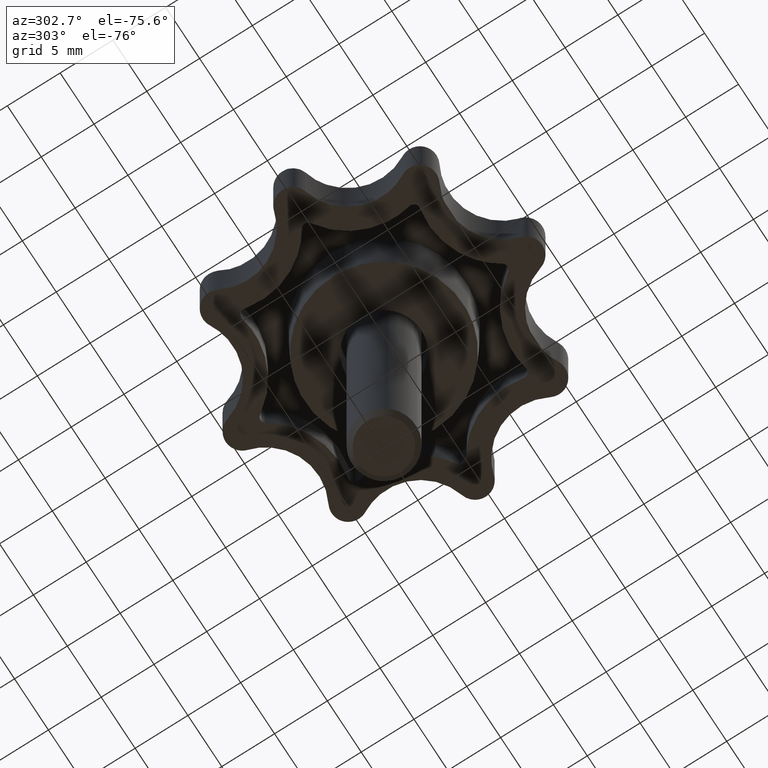
[diagram: clean part render]
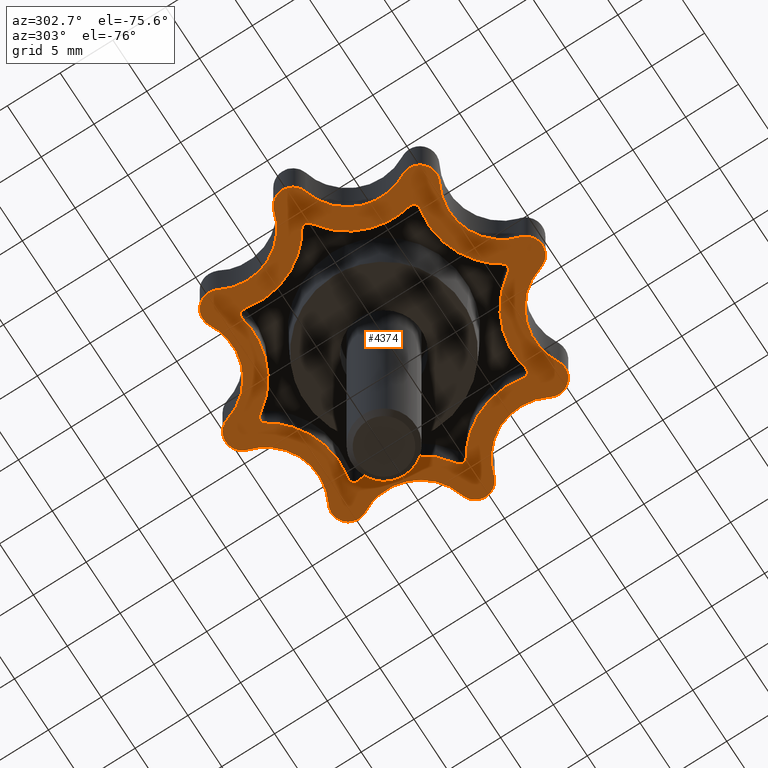
[diagram: same view with one face highlighted and labeled with its STEP entity id]
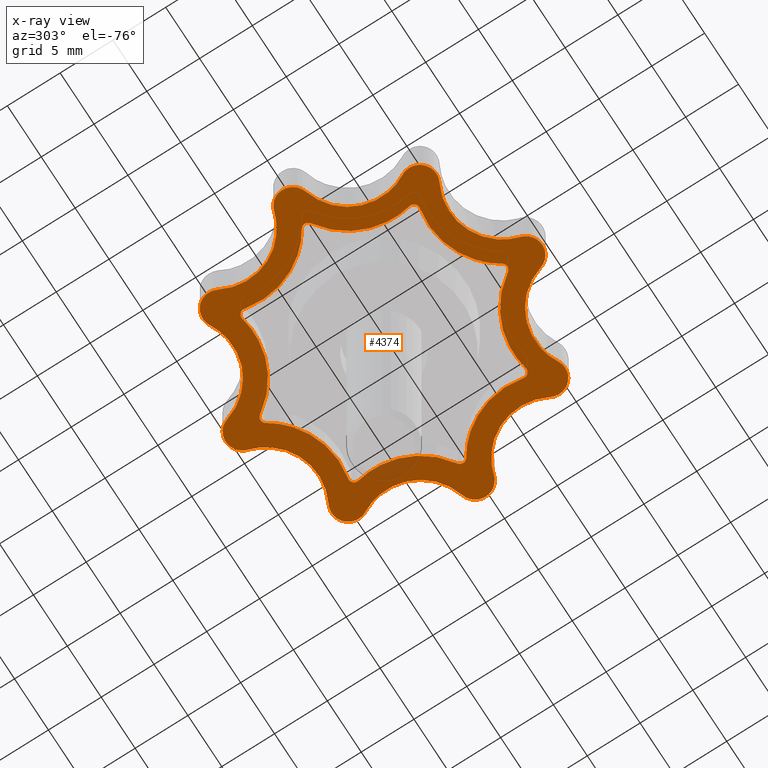
[diagram: x-ray of the same camera — body ghosted, the highlighted face saturated]
A machine part, auxiliary view. The second image highlights one B-rep face of the part: STEP entity #4374.
The next image is the same camera in x-ray: the body ghosted, the highlighted face saturated — about 3% of this face is hidden behind the body in this view.
In plain terms, the highlighted face is a freeform B-spline surface patch.
Its self-contained STEP definition (entity closure, byte-faithful):
#1840=CARTESIAN_POINT('',(-11.466616060353440,-0.420951746445585,3.0));
#1841=VERTEX_POINT('',#1840);
#1842=CARTESIAN_POINT('',(-11.466616669341400,0.420953220121765,3.0));
#1843=VERTEX_POINT('',#1842);
#1844=CARTESIAN_POINT('',(-11.466616060353440,-0.420951746445585,3.0));
#1845=CARTESIAN_POINT('',(-11.696802225653112,-0.273411032230165,3.0));
#1846=CARTESIAN_POINT('',(-11.696802423424270,0.000000801871896,3.0));
#1847=CARTESIAN_POINT('',(-11.696802621195422,0.273412635973957,3.0));
#1848=CARTESIAN_POINT('',(-11.466616669341400,0.420953220121765,3.0));
#1856=(BOUNDED_CURVE()B_SPLINE_CURVE(2,(#1844,#1845,#1846,#1847,#1848),.UNSPECIFIED.,.F.,.U.)B_SPLINE_CURVE_WITH_KNOTS((3,2,3),(0.0,0.500000000000000,1.0),.UNSPECIFIED.)CURVE()GEOMETRIC_REPRESENTATION_ITEM()RATIONAL_B_SPLINE_CURVE((1.0,0.877390415620743,1.0,0.877390415620743,1.0))REPRESENTATION_ITEM(''));
#1857=EDGE_CURVE('',#1841,#1843,#1856,.T.);
#1905=CARTESIAN_POINT('',(-8.405779169412218,7.810465440546620,3.0));
#1906=VERTEX_POINT('',#1905);
#1907=CARTESIAN_POINT('',(-8.405779169412218,7.810465440546620,3.0));
#1908=CARTESIAN_POINT('',(-7.364287795839590,3.050389231653052,3.000000000000000));
#1909=CARTESIAN_POINT('',(-11.466616669341400,0.420953220121765,3.0));
#1917=(BOUNDED_CURVE()B_SPLINE_CURVE(2,(#1907,#1908,#1909),.UNSPECIFIED.,.F.,.U.)CURVE()GEOMETRIC_REPRESENTATION_ITEM()QUASI_UNIFORM_CURVE()RATIONAL_B_SPLINE_CURVE((1.0,0.820733852812958,1.0))REPRESENTATION_ITEM(''));
#1918=EDGE_CURVE('',#1906,#1843,#1917,.T.);
#1958=CARTESIAN_POINT('',(-7.810465116249390,8.405778471548711,3.0));
#1959=VERTEX_POINT('',#1958);
#1960=CARTESIAN_POINT('',(-8.405779169412218,7.810465440546620,3.0));
#1961=CARTESIAN_POINT('',(-8.464218458870660,8.077557511948944,3.0));
#1962=CARTESIAN_POINT('',(-8.270888085413219,8.270887553456022,3.0));
#1963=CARTESIAN_POINT('',(-8.077557711955777,8.464217594963097,3.0));
#1964=CARTESIAN_POINT('',(-7.810465116249390,8.405778471548711,3.0));
#1972=(BOUNDED_CURVE()B_SPLINE_CURVE(2,(#1960,#1961,#1962,#1963,#1964),.UNSPECIFIED.,.F.,.U.)B_SPLINE_CURVE_WITH_KNOTS((3,2,3),(0.0,0.500000000000000,1.0),.UNSPECIFIED.)CURVE()GEOMETRIC_REPRESENTATION_ITEM()RATIONAL_B_SPLINE_CURVE((1.0,0.877390700077393,1.0,0.877390700077393,1.0))REPRESENTATION_ITEM(''));
#1973=EDGE_CURVE('',#1906,#1959,#1972,.T.);
#2015=CARTESIAN_POINT('',(-0.420951817082727,11.466617950148519,3.0));
#2016=VERTEX_POINT('',#2015);
#2017=CARTESIAN_POINT('',(-0.420951817082727,11.466617950148519,3.0));
#2018=CARTESIAN_POINT('',(-3.050386521005773,7.364285916724610,3.000000000000000));
#2019=CARTESIAN_POINT('',(-7.810465116249391,8.405778471548709,3.0));
#2027=(BOUNDED_CURVE()B_SPLINE_CURVE(2,(#2017,#2018,#2019),.UNSPECIFIED.,.F.,.U.)CURVE()GEOMETRIC_REPRESENTATION_ITEM()QUASI_UNIFORM_CURVE()RATIONAL_B_SPLINE_CURVE((1.0,0.820733710770404,1.0))REPRESENTATION_ITEM(''));
#2028=EDGE_CURVE('',#2016,#1959,#2027,.T.);
#2068=CARTESIAN_POINT('',(0.420952560841821,11.466615697920640,3.0));
#2069=VERTEX_POINT('',#2068);
#2070=CARTESIAN_POINT('',(-0.420951817082728,11.466617950148519,3.0));
#2071=CARTESIAN_POINT('',(-0.273410995669542,11.696804628167095,3.0));
#2072=CARTESIAN_POINT('',(0.000001148757352,11.696803999998680,3.0));
#2073=CARTESIAN_POINT('',(0.273413293184246,11.696803371830264,3.0));
#2074=CARTESIAN_POINT('',(0.420952560841821,11.466615697920640,3.0));
#2082=(BOUNDED_CURVE()B_SPLINE_CURVE(2,(#2070,#2071,#2072,#2073,#2074),.UNSPECIFIED.,.F.,.U.)B_SPLINE_CURVE_WITH_KNOTS((3,2,3),(0.0,0.500000000000000,1.0),.UNSPECIFIED.)CURVE()GEOMETRIC_REPRESENTATION_ITEM()RATIONAL_B_SPLINE_CURVE((1.0,0.877389869445061,1.0,0.877389869445061,1.0))REPRESENTATION_ITEM(''));
#2083=EDGE_CURVE('',#2016,#2069,#2082,.T.);
#2125=CARTESIAN_POINT('',(7.810465491696459,8.405781180603670,3.0));
#2126=VERTEX_POINT('',#2125);
#2127=CARTESIAN_POINT('',(7.810465491696459,8.405781180603670,3.0));
#2128=CARTESIAN_POINT('',(3.050388291577297,7.364286943626217,3.000000000000000));
#2129=CARTESIAN_POINT('',(0.420952560841821,11.466615697920640,3.0));
#2137=(BOUNDED_CURVE()B_SPLINE_CURVE(2,(#2127,#2128,#2129),.UNSPECIFIED.,.F.,.U.)CURVE()GEOMETRIC_REPRESENTATION_ITEM()QUASI_UNIFORM_CURVE()RATIONAL_B_SPLINE_CURVE((1.0,0.820733765930677,1.0))REPRESENTATION_ITEM(''));
#2138=EDGE_CURVE('',#2126,#2069,#2137,.T.);
#2178=CARTESIAN_POINT('',(8.405778549888890,7.810465474298390,3.0));
#2179=VERTEX_POINT('',#2178);
#2180=CARTESIAN_POINT('',(7.810465491696459,8.405781180603670,3.0));
#2181=CARTESIAN_POINT('',(8.077558129351429,8.464220532624379,3.000000000000000));
#2182=CARTESIAN_POINT('',(8.270888341955242,8.270889460035699,3.0));
#2183=CARTESIAN_POINT('',(8.464218554559057,8.077558387447018,3.000000000000000));
#2184=CARTESIAN_POINT('',(8.405778549888890,7.810465474298390,3.0));
#2192=(BOUNDED_CURVE()B_SPLINE_CURVE(2,(#2180,#2181,#2182,#2183,#2184),.UNSPECIFIED.,.F.,.U.)B_SPLINE_CURVE_WITH_KNOTS((3,2,3),(0.0,0.500000000000000,1.0),.UNSPECIFIED.)CURVE()GEOMETRIC_REPRESENTATION_ITEM()RATIONAL_B_SPLINE_CURVE((1.0,0.877390331870026,1.0,0.877390331870026,1.0))REPRESENTATION_ITEM(''));
#2193=EDGE_CURVE('',#2126,#2179,#2192,.T.);
#2235=CARTESIAN_POINT('',(11.466614023618479,0.420951769991303,3.0));
#2236=VERTEX_POINT('',#2235);
#2237=CARTESIAN_POINT('',(11.466614023618479,0.420951769991303,3.0));
#2238=CARTESIAN_POINT('',(7.364285784696215,3.050388385861189,3.0));
#2239=CARTESIAN_POINT('',(8.405778549888890,7.810465474298390,3.0));
#2247=(BOUNDED_CURVE()B_SPLINE_CURVE(2,(#2237,#2238,#2239),.UNSPECIFIED.,.F.,.U.)CURVE()GEOMETRIC_REPRESENTATION_ITEM()QUASI_UNIFORM_CURVE()RATIONAL_B_SPLINE_CURVE((1.0,0.820733829677693,1.0))REPRESENTATION_ITEM(''));
#2248=EDGE_CURVE('',#2236,#2179,#2247,.T.);
#2288=CARTESIAN_POINT('',(11.466613846478040,-0.420953747545852,3.0));
#2289=VERTEX_POINT('',#2288);
#2290=CARTESIAN_POINT('',(11.466614023618479,0.420951769991303,3.0));
#2291=CARTESIAN_POINT('',(11.696800480950095,0.273410896934098,3.0));
#2292=CARTESIAN_POINT('',(11.696800423423030,-0.000001268747402,3.0));
#2293=CARTESIAN_POINT('',(11.696800365895967,-0.273413434428903,3.0));
#2294=CARTESIAN_POINT('',(11.466613846478040,-0.420953747545852,3.0));
#2302=(BOUNDED_CURVE()B_SPLINE_CURVE(2,(#2290,#2291,#2292,#2293,#2294),.UNSPECIFIED.,.F.,.U.)B_SPLINE_CURVE_WITH_KNOTS((3,2,3),(0.0,0.500000000000000,1.0),.UNSPECIFIED.)CURVE()GEOMETRIC_REPRESENTATION_ITEM()RATIONAL_B_SPLINE_CURVE((1.0,0.877390170690931,1.0,0.877390170690931,1.0))REPRESENTATION_ITEM(''));
#2303=EDGE_CURVE('',#2236,#2289,#2302,.T.);
#2345=CARTESIAN_POINT('',(8.405781171277440,-7.810465449071570,3.0));
#2346=VERTEX_POINT('',#2345);
#2347=CARTESIAN_POINT('',(8.405781171277440,-7.810465449071570,3.0));
#2348=CARTESIAN_POINT('',(7.364287319794066,-3.050389868726755,2.999999999999999));
#2349=CARTESIAN_POINT('',(11.466613846478040,-0.420953747545852,3.0));
#2357=(BOUNDED_CURVE()B_SPLINE_CURVE(2,(#2347,#2348,#2349),.UNSPECIFIED.,.F.,.U.)CURVE()GEOMETRIC_REPRESENTATION_ITEM()QUASI_UNIFORM_CURVE()RATIONAL_B_SPLINE_CURVE((1.0,0.820733857452547,1.0))REPRESENTATION_ITEM(''));
#2358=EDGE_CURVE('',#2346,#2289,#2357,.T.);
#2398=CARTESIAN_POINT('',(7.810464519501011,-8.405778340981780,3.0));
#2399=VERTEX_POINT('',#2398);
#2400=CARTESIAN_POINT('',(8.405781171277440,-7.810465449071570,3.0));
#2401=CARTESIAN_POINT('',(8.464220617479620,-8.077558405546155,3.0));
#2402=CARTESIAN_POINT('',(8.270889129904916,-8.270888672089116,3.0));
#2403=CARTESIAN_POINT('',(8.077557642330214,-8.464218938632078,3.0));
#2404=CARTESIAN_POINT('',(7.810464519501011,-8.405778340981780,3.0));
#2412=(BOUNDED_CURVE()B_SPLINE_CURVE(2,(#2400,#2401,#2402,#2403,#2404),.UNSPECIFIED.,.F.,.U.)B_SPLINE_CURVE_WITH_KNOTS((3,2,3),(0.0,0.500000000000000,1.0),.UNSPECIFIED.)CURVE()GEOMETRIC_REPRESENTATION_ITEM()RATIONAL_B_SPLINE_CURVE((1.0,0.877390086938198,1.0,0.877390086938198,1.0))REPRESENTATION_ITEM(''));
#2413=EDGE_CURVE('',#2346,#2399,#2412,.T.);
#2455=CARTESIAN_POINT('',(0.420951793537017,-11.466613986883480,3.0));
#2456=VERTEX_POINT('',#2455);
#2457=CARTESIAN_POINT('',(0.420951793537017,-11.466613986883480,3.0));
#2458=CARTESIAN_POINT('',(3.050388026006538,-7.364286402410421,3.000000000000000));
#2459=CARTESIAN_POINT('',(7.810464519501011,-8.405778340981780,3.0));
#2467=(BOUNDED_CURVE()B_SPLINE_CURVE(2,(#2457,#2458,#2459),.UNSPECIFIED.,.F.,.U.)CURVE()GEOMETRIC_REPRESENTATION_ITEM()QUASI_UNIFORM_CURVE()RATIONAL_B_SPLINE_CURVE((1.0,0.820733871343288,1.0))REPRESENTATION_ITEM(''));
#2468=EDGE_CURVE('',#2456,#2399,#2467,.T.);
#2508=CARTESIAN_POINT('',(-0.420952890481779,-11.466615183630999,3.0));
#2509=VERTEX_POINT('',#2508);
#2510=CARTESIAN_POINT('',(0.420951793537017,-11.466613986883480,3.0));
#2511=CARTESIAN_POINT('',(0.273411211255046,-11.696800034776890,3.000000000000000));
#2512=CARTESIAN_POINT('',(-0.000000452806537,-11.696800423425080,3.0));
#2513=CARTESIAN_POINT('',(-0.273412116868121,-11.696800812073270,3.000000000000000));
#2514=CARTESIAN_POINT('',(-0.420952890481779,-11.466615183630999,3.0));
#2522=(BOUNDED_CURVE()B_SPLINE_CURVE(2,(#2510,#2511,#2512,#2513,#2514),.UNSPECIFIED.,.F.,.U.)B_SPLINE_CURVE_WITH_KNOTS((3,2,3),(0.0,0.500000000000000,1.0),.UNSPECIFIED.)CURVE()GEOMETRIC_REPRESENTATION_ITEM()RATIONAL_B_SPLINE_CURVE((1.0,0.877390541225595,1.0,0.877390541225595,1.0))REPRESENTATION_ITEM(''));
#2523=EDGE_CURVE('',#2456,#2509,#2522,.T.);
#2565=CARTESIAN_POINT('',(-7.810463534321370,-8.405781189929851,3.0));
#2566=VERTEX_POINT('',#2565);
#2567=CARTESIAN_POINT('',(-7.810463534321370,-8.405781189929851,3.0));
#2568=CARTESIAN_POINT('',(-3.050387923729147,-7.364288443043416,3.0));
#2569=CARTESIAN_POINT('',(-0.420952890481779,-11.466615183630999,3.0));
#2577=(BOUNDED_CURVE()B_SPLINE_CURVE(2,(#2567,#2568,#2569),.UNSPECIFIED.,.F.,.U.)CURVE()GEOMETRIC_REPRESENTATION_ITEM()QUASI_UNIFORM_CURVE()RATIONAL_B_SPLINE_CURVE((1.0,0.820733868807974,1.0))REPRESENTATION_ITEM(''));
#2578=EDGE_CURVE('',#2566,#2509,#2577,.T.);
#2618=CARTESIAN_POINT('',(-8.405779175007952,-7.810465466121520,3.0));
#2619=VERTEX_POINT('',#2618);
#2620=CARTESIAN_POINT('',(-7.810463534321364,-8.405781189929876,3.0));
#2621=CARTESIAN_POINT('',(-8.077556427083682,-8.464220381096979,3.000000000000000));
#2622=CARTESIAN_POINT('',(-8.270887415275967,-8.270889365910582,3.0));
#2623=CARTESIAN_POINT('',(-8.464218403468252,-8.077558350724184,3.000000000000000));
#2624=CARTESIAN_POINT('',(-8.405779175007933,-7.810465466121524,3.0));
#2632=(BOUNDED_CURVE()B_SPLINE_CURVE(2,(#2620,#2621,#2622,#2623,#2624),.UNSPECIFIED.,.F.,.U.)B_SPLINE_CURVE_WITH_KNOTS((3,2,3),(0.0,0.500000000000000,1.0),.UNSPECIFIED.)CURVE()GEOMETRIC_REPRESENTATION_ITEM()RATIONAL_B_SPLINE_CURVE((1.0,0.877390475022068,1.0,0.877390475022068,1.0))REPRESENTATION_ITEM(''));
#2633=EDGE_CURVE('',#2566,#2619,#2632,.T.);
#2675=CARTESIAN_POINT('',(-11.466616060353440,-0.420951746445585,3.0));
#2676=CARTESIAN_POINT('',(-7.364287311230168,-3.050388376664200,3.0));
#2677=CARTESIAN_POINT('',(-8.405779175007952,-7.810465466121520,3.0));
#2685=(BOUNDED_CURVE()B_SPLINE_CURVE(2,(#2675,#2676,#2677),.UNSPECIFIED.,.F.,.U.)CURVE()GEOMETRIC_REPRESENTATION_ITEM()QUASI_UNIFORM_CURVE()RATIONAL_B_SPLINE_CURVE((1.0,0.820733840215241,1.0))REPRESENTATION_ITEM(''));
#2686=EDGE_CURVE('',#1841,#2619,#2685,.T.);
#3656=CARTESIAN_POINT('',(-13.863727946348259,1.508571686598650,3.0));
#3657=VERTEX_POINT('',#3656);
#3664=CARTESIAN_POINT('',(-10.869855616428300,8.736414904418341,3.0));
#3665=VERTEX_POINT('',#3664);
#3671=CARTESIAN_POINT('',(-10.869855616428310,8.736414904418339,3.0));
#3672=CARTESIAN_POINT('',(-9.702207444538935,6.627749261627007,3.000000000000000));
#3673=CARTESIAN_POINT('',(-10.624615708558720,4.400859942223553,3.0));
#3674=CARTESIAN_POINT('',(-11.547023972578511,2.173970622820099,3.000000000000000));
#3675=CARTESIAN_POINT('',(-13.863727946348259,1.508571686598648,3.0));
#3683=(BOUNDED_CURVE()B_SPLINE_CURVE(2,(#3671,#3672,#3673,#3674,#3675),.UNSPECIFIED.,.F.,.U.)B_SPLINE_CURVE_WITH_KNOTS((3,2,3),(0.0,0.500000000000000,1.0),.UNSPECIFIED.)CURVE()GEOMETRIC_REPRESENTATION_ITEM()RATIONAL_B_SPLINE_CURVE((1.0,0.900793098093987,1.0,0.900793098093987,1.0))REPRESENTATION_ITEM(''));
#3684=EDGE_CURVE('',#3665,#3657,#3683,.T.);
#3703=CARTESIAN_POINT('',(-8.736416448502650,10.869854471446720,3.0));
#3704=VERTEX_POINT('',#3703);
#3711=CARTESIAN_POINT('',(-1.508570825221905,13.863727514887360,3.0));
#3712=VERTEX_POINT('',#3711);
#3718=CARTESIAN_POINT('',(-1.508570825221905,13.863727514887360,3.0));
#3719=CARTESIAN_POINT('',(-2.173969630860468,11.547022378340134,3.000000000000000));
#3720=CARTESIAN_POINT('',(-4.400859951292025,10.624613704802440,3.0));
#3721=CARTESIAN_POINT('',(-6.627750271723583,9.702205031264736,3.000000000000000));
#3722=CARTESIAN_POINT('',(-8.736416448502645,10.869854471446731,3.0));
#3730=(BOUNDED_CURVE()B_SPLINE_CURVE(2,(#3718,#3719,#3720,#3721,#3722),.UNSPECIFIED.,.F.,.U.)B_SPLINE_CURVE_WITH_KNOTS((3,2,3),(0.0,0.500000000000000,1.0),.UNSPECIFIED.)CURVE()GEOMETRIC_REPRESENTATION_ITEM()RATIONAL_B_SPLINE_CURVE((1.0,0.900793021875006,1.0,0.900793021875006,1.0))REPRESENTATION_ITEM(''));
#3731=EDGE_CURVE('',#3712,#3704,#3730,.T.);
#3750=CARTESIAN_POINT('',(1.508571614327085,13.863726197974440,3.0));
#3751=VERTEX_POINT('',#3750);
#3758=CARTESIAN_POINT('',(8.736414706498250,10.869855973853820,3.0));
#3759=VERTEX_POINT('',#3758);
#3765=CARTESIAN_POINT('',(8.736414706498250,10.869855973853820,3.0));
#3766=CARTESIAN_POINT('',(6.627749158893280,9.702206847363126,3.000000000000000));
#3767=CARTESIAN_POINT('',(4.400859746088190,10.624614517312130,3.0));
#3768=CARTESIAN_POINT('',(2.173970333283100,11.547022187261133,3.000000000000000));
#3769=CARTESIAN_POINT('',(1.508571614327085,13.863726197974440,3.0));
#3777=(BOUNDED_CURVE()B_SPLINE_CURVE(2,(#3765,#3766,#3767,#3768,#3769),.UNSPECIFIED.,.F.,.U.)B_SPLINE_CURVE_WITH_KNOTS((3,2,3),(0.0,0.500000000000000,1.0),.UNSPECIFIED.)CURVE()GEOMETRIC_REPRESENTATION_ITEM()RATIONAL_B_SPLINE_CURVE((1.0,0.900793071373488,1.0,0.900793071373488,1.0))REPRESENTATION_ITEM(''));
#3778=EDGE_CURVE('',#3759,#3751,#3777,.T.);
#3797=CARTESIAN_POINT('',(10.869854302349561,8.736416143128899,3.0));
#3798=VERTEX_POINT('',#3797);
#3805=CARTESIAN_POINT('',(13.863727593875939,1.508570802534970,3.0));
#3806=VERTEX_POINT('',#3805);
#3812=CARTESIAN_POINT('',(13.863727593875939,1.508570802534970,3.0));
#3813=CARTESIAN_POINT('',(11.547022525423317,2.173969547396042,3.0));
#3814=CARTESIAN_POINT('',(10.624613787318200,4.400859752081474,3.0));
#3815=CARTESIAN_POINT('',(9.702205049213079,6.627749956766908,3.0));
#3816=CARTESIAN_POINT('',(10.869854302349570,8.736416143128892,3.0));
#3824=(BOUNDED_CURVE()B_SPLINE_CURVE(2,(#3812,#3813,#3814,#3815,#3816),.UNSPECIFIED.,.F.,.U.)B_SPLINE_CURVE_WITH_KNOTS((3,2,3),(0.0,0.500000000000000,1.0),.UNSPECIFIED.)CURVE()GEOMETRIC_REPRESENTATION_ITEM()RATIONAL_B_SPLINE_CURVE((1.0,0.900793027669703,1.0,0.900793027669703,1.0))REPRESENTATION_ITEM(''));
#3825=EDGE_CURVE('',#3806,#3798,#3824,.T.);
#3844=CARTESIAN_POINT('',(13.863725862472840,-1.508571710689175,3.0));
#3845=VERTEX_POINT('',#3844);
#3852=CARTESIAN_POINT('',(10.869856000394661,-8.736418754428561,3.0));
#3853=VERTEX_POINT('',#3852);
#3859=CARTESIAN_POINT('',(10.869856000394661,-8.736418754428561,3.0));
#3860=CARTESIAN_POINT('',(9.702205066069135,-6.627753079135502,3.0));
#3861=CARTESIAN_POINT('',(10.624612826428450,-4.400862071874644,3.0));
#3862=CARTESIAN_POINT('',(11.547020586787768,-2.173971064613788,3.0));
#3863=CARTESIAN_POINT('',(13.863725862472840,-1.508571710689175,3.0));
#3871=(BOUNDED_CURVE()B_SPLINE_CURVE(2,(#3859,#3860,#3861,#3862,#3863),.UNSPECIFIED.,.F.,.U.)B_SPLINE_CURVE_WITH_KNOTS((3,2,3),(0.0,0.500000000000000,1.0),.UNSPECIFIED.)CURVE()GEOMETRIC_REPRESENTATION_ITEM()RATIONAL_B_SPLINE_CURVE((1.0,0.900793001784100,1.0,0.900793001784100,1.0))REPRESENTATION_ITEM(''));
#3872=EDGE_CURVE('',#3853,#3845,#3871,.T.);
#3891=CARTESIAN_POINT('',(8.736416601189490,-10.869854555995300,3.0));
#3892=VERTEX_POINT('',#3891);
#3899=CARTESIAN_POINT('',(1.508570787410345,-13.863731646535021,3.0));
#3900=VERTEX_POINT('',#3899);
#3906=CARTESIAN_POINT('',(1.508570787410345,-13.863731646535021,3.0));
#3907=CARTESIAN_POINT('',(2.173967040407069,-11.547024444576280,3.000000000000000));
#3908=CARTESIAN_POINT('',(4.400858192686115,-10.624614433241639,3.0));
#3909=CARTESIAN_POINT('',(6.627749344965157,-9.702204421907005,3.000000000000000));
#3910=CARTESIAN_POINT('',(8.736416601189488,-10.869854555995300,3.0));
#3918=(BOUNDED_CURVE()B_SPLINE_CURVE(2,(#3906,#3907,#3908,#3909,#3910),.UNSPECIFIED.,.F.,.U.)B_SPLINE_CURVE_WITH_KNOTS((3,2,3),(0.0,0.500000000000000,1.0),.UNSPECIFIED.)CURVE()GEOMETRIC_REPRESENTATION_ITEM()RATIONAL_B_SPLINE_CURVE((1.0,0.900792931636608,1.0,0.900792931636608,1.0))REPRESENTATION_ITEM(''));
#3919=EDGE_CURVE('',#3900,#3892,#3918,.T.);
#3938=CARTESIAN_POINT('',(-1.508571734779690,-13.863725778597461,3.0));
#3939=VERTEX_POINT('',#3938);
#3946=CARTESIAN_POINT('',(-8.736414658567961,-10.869859947312980,3.0));
#3947=VERTEX_POINT('',#3946);
#3953=CARTESIAN_POINT('',(-8.736414658567961,-10.869859947312980,3.0));
#3954=CARTESIAN_POINT('',(-6.627749486081129,-9.702209223353835,3.0));
#3955=CARTESIAN_POINT('',(-4.400859969859361,-10.624615604200811,3.0));
#3956=CARTESIAN_POINT('',(-2.173970453637590,-11.547021985047788,3.0));
#3957=CARTESIAN_POINT('',(-1.508571734779690,-13.863725778597461,3.0));
#3965=(BOUNDED_CURVE()B_SPLINE_CURVE(2,(#3953,#3954,#3955,#3956,#3957),.UNSPECIFIED.,.F.,.U.)B_SPLINE_CURVE_WITH_KNOTS((3,2,3),(0.0,0.500000000000000,1.0),.UNSPECIFIED.)CURVE()GEOMETRIC_REPRESENTATION_ITEM()RATIONAL_B_SPLINE_CURVE((1.0,0.900793039964459,1.0,0.900793039964459,1.0))REPRESENTATION_ITEM(''));
#3966=EDGE_CURVE('',#3947,#3939,#3965,.T.);
#3985=CARTESIAN_POINT('',(-10.869856026935521,-8.736418802358859,3.0));
#3986=VERTEX_POINT('',#3985);
#3993=CARTESIAN_POINT('',(-13.863725725523601,-1.508570764723400,3.0));
#3994=VERTEX_POINT('',#3993);
#4000=CARTESIAN_POINT('',(-13.863725725523601,-1.508570764723400,3.0));
#4001=CARTESIAN_POINT('',(-11.547021312688674,-2.173971137745232,3.0));
#4002=CARTESIAN_POINT('',(-10.624613782501729,-4.400862127725885,3.0));
#4003=CARTESIAN_POINT('',(-9.702206252314785,-6.627753117706538,3.0));
#4004=CARTESIAN_POINT('',(-10.869856026935521,-8.736418802358859,3.0));
#4012=(BOUNDED_CURVE()B_SPLINE_CURVE(2,(#4000,#4001,#4002,#4003,#4004),.UNSPECIFIED.,.F.,.U.)B_SPLINE_CURVE_WITH_KNOTS((3,2,3),(0.0,0.500000000000000,1.0),.UNSPECIFIED.)CURVE()GEOMETRIC_REPRESENTATION_ITEM()RATIONAL_B_SPLINE_CURVE((1.0,0.900793060556120,1.0,0.900793060556120,1.0))REPRESENTATION_ITEM(''));
#4013=EDGE_CURVE('',#3994,#3986,#4012,.T.);
#4039=CARTESIAN_POINT('',(-10.869855616428300,8.736414904418341,3.0));
#4040=CARTESIAN_POINT('',(-11.442552162696090,9.770651047264755,3.0));
#4041=CARTESIAN_POINT('',(-10.606602559214920,10.606600807127119,3.0));
#4042=CARTESIAN_POINT('',(-9.770652955733747,11.442550566989489,3.0));
#4043=CARTESIAN_POINT('',(-8.736416448502650,10.869854471446720,3.0));
#4051=(BOUNDED_CURVE()B_SPLINE_CURVE(2,(#4039,#4040,#4041,#4042,#4043),.UNSPECIFIED.,.F.,.U.)B_SPLINE_CURVE_WITH_KNOTS((3,2,3),(0.0,0.500000000000000,1.0),.UNSPECIFIED.)CURVE()GEOMETRIC_REPRESENTATION_ITEM()RATIONAL_B_SPLINE_CURVE((1.0,0.798766952260736,1.0,0.798766952260736,1.0))REPRESENTATION_ITEM(''));
#4052=EDGE_CURVE('',#3665,#3704,#4051,.T.);
#4078=CARTESIAN_POINT('',(-1.508570825221907,13.863727514887360,3.0));
#4079=CARTESIAN_POINT('',(-1.182212602772117,15.000001558724014,3.000000000000000));
#4080=CARTESIAN_POINT('',(0.000000741788484,15.000000999999830,3.0));
#4081=CARTESIAN_POINT('',(1.182214086349086,15.000000441275651,3.000000000000000));
#4082=CARTESIAN_POINT('',(1.508571614327085,13.863726197974440,3.0));
#4090=(BOUNDED_CURVE()B_SPLINE_CURVE(2,(#4078,#4079,#4080,#4081,#4082),.UNSPECIFIED.,.F.,.U.)B_SPLINE_CURVE_WITH_KNOTS((3,2,3),(0.0,0.500000000000000,1.0),.UNSPECIFIED.)CURVE()GEOMETRIC_REPRESENTATION_ITEM()RATIONAL_B_SPLINE_CURVE((1.0,0.798766707544027,1.0,0.798766707544027,1.0))REPRESENTATION_ITEM(''));
#4091=EDGE_CURVE('',#3712,#3751,#4090,.T.);
#4118=CARTESIAN_POINT('',(8.736414706498250,10.869855973853820,3.0));
#4119=CARTESIAN_POINT('',(9.770650990408743,11.442552547717266,3.000000000000000));
#4120=CARTESIAN_POINT('',(10.606600831580741,10.606602614514280,3.0));
#4121=CARTESIAN_POINT('',(11.442550672752736,9.770652681311292,3.000000000000000));
#4122=CARTESIAN_POINT('',(10.869854302349561,8.736416143128899,3.0));
#4130=(BOUNDED_CURVE()B_SPLINE_CURVE(2,(#4118,#4119,#4120,#4121,#4122),.UNSPECIFIED.,.F.,.U.)B_SPLINE_CURVE_WITH_KNOTS((3,2,3),(0.0,0.500000000000000,1.0),.UNSPECIFIED.)CURVE()GEOMETRIC_REPRESENTATION_ITEM()RATIONAL_B_SPLINE_CURVE((1.0,0.798766918809939,1.0,0.798766918809939,1.0))REPRESENTATION_ITEM(''));
#4131=EDGE_CURVE('',#3759,#3798,#4130,.T.);
#4158=CARTESIAN_POINT('',(13.863727593875939,1.508570802534973,3.0));
#4159=CARTESIAN_POINT('',(15.000001721134534,1.182212491721733,3.000000000000000));
#4160=CARTESIAN_POINT('',(15.000000999999710,-0.000000957412406,3.0));
#4161=CARTESIAN_POINT('',(15.000000278864876,-1.182214406546547,3.000000000000000));
#4162=CARTESIAN_POINT('',(13.863725862472840,-1.508571710689175,3.0));
#4170=(BOUNDED_CURVE()B_SPLINE_CURVE(2,(#4158,#4159,#4160,#4161,#4162),.UNSPECIFIED.,.F.,.U.)B_SPLINE_CURVE_WITH_KNOTS((3,2,3),(0.0,0.500000000000000,1.0),.UNSPECIFIED.)CURVE()GEOMETRIC_REPRESENTATION_ITEM()RATIONAL_B_SPLINE_CURVE((1.0,0.798766681968715,1.0,0.798766681968715,1.0))REPRESENTATION_ITEM(''));
#4171=EDGE_CURVE('',#3806,#3845,#4170,.T.);
#4198=CARTESIAN_POINT('',(10.869856000394661,-8.736418754428561,3.0));
#4199=CARTESIAN_POINT('',(11.442552979539533,-9.770655193153823,3.0));
#4200=CARTESIAN_POINT('',(10.606602942764940,-10.606603820258210,3.0));
#4201=CARTESIAN_POINT('',(9.770652905990341,-11.442552447362587,3.0));
#4202=CARTESIAN_POINT('',(8.736416601189490,-10.869854555995300,3.0));
#4210=(BOUNDED_CURVE()B_SPLINE_CURVE(2,(#4198,#4199,#4200,#4201,#4202),.UNSPECIFIED.,.F.,.U.)B_SPLINE_CURVE_WITH_KNOTS((3,2,3),(0.0,0.500000000000000,1.0),.UNSPECIFIED.)CURVE()GEOMETRIC_REPRESENTATION_ITEM()RATIONAL_B_SPLINE_CURVE((1.0,0.798766788546360,1.0,0.798766788546360,1.0))REPRESENTATION_ITEM(''));
#4211=EDGE_CURVE('',#3853,#3892,#4210,.T.);
#4237=CARTESIAN_POINT('',(1.508570787410345,-13.863731646535021,3.0));
#4238=CARTESIAN_POINT('',(1.182212017560927,-15.000007222521615,3.000000000000000));
#4239=CARTESIAN_POINT('',(-0.000002950723754,-15.000004999997250,3.0));
#4240=CARTESIAN_POINT('',(-1.182217919008435,-15.000002777472879,3.000000000000000));
#4241=CARTESIAN_POINT('',(-1.508571734779690,-13.863725778597461,3.0));
#4249=(BOUNDED_CURVE()B_SPLINE_CURVE(2,(#4237,#4238,#4239,#4240,#4241),.UNSPECIFIED.,.F.,.U.)B_SPLINE_CURVE_WITH_KNOTS((3,2,3),(0.0,0.500000000000000,1.0),.UNSPECIFIED.)CURVE()GEOMETRIC_REPRESENTATION_ITEM()RATIONAL_B_SPLINE_CURVE((1.0,0.798766310433408,1.0,0.798766310433408,1.0))REPRESENTATION_ITEM(''));
#4250=EDGE_CURVE('',#3900,#3939,#4249,.T.);
#4276=CARTESIAN_POINT('',(-8.736414658567961,-10.869859947312980,3.0));
#4277=CARTESIAN_POINT('',(-9.770651261193050,-11.442556518651848,3.000000000000001));
#4278=CARTESIAN_POINT('',(-10.606601875581219,-10.606605991804219,3.0));
#4279=CARTESIAN_POINT('',(-11.442552489969387,-9.770655464956588,3.000000000000001));
#4280=CARTESIAN_POINT('',(-10.869856026935521,-8.736418802358861,3.0));
#4288=(BOUNDED_CURVE()B_SPLINE_CURVE(2,(#4276,#4277,#4278,#4279,#4280),.UNSPECIFIED.,.F.,.U.)B_SPLINE_CURVE_WITH_KNOTS((3,2,3),(0.0,0.500000000000000,1.0),.UNSPECIFIED.)CURVE()GEOMETRIC_REPRESENTATION_ITEM()RATIONAL_B_SPLINE_CURVE((1.0,0.798766881216162,1.0,0.798766881216162,1.0))REPRESENTATION_ITEM(''));
#4289=EDGE_CURVE('',#3947,#3986,#4288,.T.);
#4314=CARTESIAN_POINT('',(-13.863725725523601,-1.508570764723400,3.0));
#4315=CARTESIAN_POINT('',(-14.999998336733253,-1.182212639008807,3.000000000000000));
#4316=CARTESIAN_POINT('',(-14.999999206923020,-0.000000219580533,3.0));
#4317=CARTESIAN_POINT('',(-15.000000077112796,1.182212199847741,3.000000000000000));
#4318=CARTESIAN_POINT('',(-13.863727946348259,1.508571686598650,3.0));
#4326=(BOUNDED_CURVE()B_SPLINE_CURVE(2,(#4314,#4315,#4316,#4317,#4318),.UNSPECIFIED.,.F.,.U.)B_SPLINE_CURVE_WITH_KNOTS((3,2,3),(0.0,0.500000000000000,1.0),.UNSPECIFIED.)CURVE()GEOMETRIC_REPRESENTATION_ITEM()RATIONAL_B_SPLINE_CURVE((1.0,0.798767071879254,1.0,0.798767071879254,1.0))REPRESENTATION_ITEM(''));
#4327=EDGE_CURVE('',#3994,#3657,#4326,.T.);
#4333=CARTESIAN_POINT('',(16.498500952189190,-16.498504959931889,3.0));
#4334=CARTESIAN_POINT('',(-16.498499963775942,-16.498504959931889,3.0));
#4335=CARTESIAN_POINT('',(16.498500952189190,16.498502032818621,3.0));
#4336=CARTESIAN_POINT('',(-16.498499963775942,16.498502032818621,3.0));
#4337=B_SPLINE_SURFACE_WITH_KNOTS('',1,1,((#4333,#4335),(#4334,#4336)),.UNSPECIFIED.,.F.,.F.,.U.,(2,2),(2,2),(0.0,32.997000915965131),(0.0,32.997006992750507),.UNSPECIFIED.);
#4338=ORIENTED_EDGE('',*,*,#3919,.F.);
#4339=ORIENTED_EDGE('',*,*,#4250,.T.);
#4340=ORIENTED_EDGE('',*,*,#3966,.F.);
#4341=ORIENTED_EDGE('',*,*,#4289,.T.);
#4342=ORIENTED_EDGE('',*,*,#4013,.F.);
#4343=ORIENTED_EDGE('',*,*,#4327,.T.);
#4344=ORIENTED_EDGE('',*,*,#3684,.F.);
#4345=ORIENTED_EDGE('',*,*,#4052,.T.);
#4346=ORIENTED_EDGE('',*,*,#3731,.F.);
#4347=ORIENTED_EDGE('',*,*,#4091,.T.);
#4348=ORIENTED_EDGE('',*,*,#3778,.F.);
#4349=ORIENTED_EDGE('',*,*,#4131,.T.);
#4350=ORIENTED_EDGE('',*,*,#3825,.F.);
#4351=ORIENTED_EDGE('',*,*,#4171,.T.);
#4352=ORIENTED_EDGE('',*,*,#3872,.F.);
#4353=ORIENTED_EDGE('',*,*,#4211,.T.);
#4354=EDGE_LOOP('',(#4338,#4339,#4340,#4341,#4342,#4343,#4344,#4345,#4346,#4347,#4348,#4349,#4350,#4351,#4352,#4353));
#4355=FACE_OUTER_BOUND('',#4354,.T.);
#4356=ORIENTED_EDGE('',*,*,#1857,.F.);
#4357=ORIENTED_EDGE('',*,*,#2686,.T.);
#4358=ORIENTED_EDGE('',*,*,#2633,.F.);
#4359=ORIENTED_EDGE('',*,*,#2578,.T.);
#4360=ORIENTED_EDGE('',*,*,#2523,.F.);
#4361=ORIENTED_EDGE('',*,*,#2468,.T.);
#4362=ORIENTED_EDGE('',*,*,#2413,.F.);
#4363=ORIENTED_EDGE('',*,*,#2358,.T.);
#4364=ORIENTED_EDGE('',*,*,#2303,.F.);
#4365=ORIENTED_EDGE('',*,*,#2248,.T.);
#4366=ORIENTED_EDGE('',*,*,#2193,.F.);
#4367=ORIENTED_EDGE('',*,*,#2138,.T.);
#4368=ORIENTED_EDGE('',*,*,#2083,.F.);
#4369=ORIENTED_EDGE('',*,*,#2028,.T.);
#4370=ORIENTED_EDGE('',*,*,#1973,.F.);
#4371=ORIENTED_EDGE('',*,*,#1918,.T.);
#4372=EDGE_LOOP('',(#4356,#4357,#4358,#4359,#4360,#4361,#4362,#4363,#4364,#4365,#4366,#4367,#4368,#4369,#4370,#4371));
#4373=FACE_BOUND('',#4372,.T.);
#4374=ADVANCED_FACE('',(#4355,#4373),#4337,.T.);